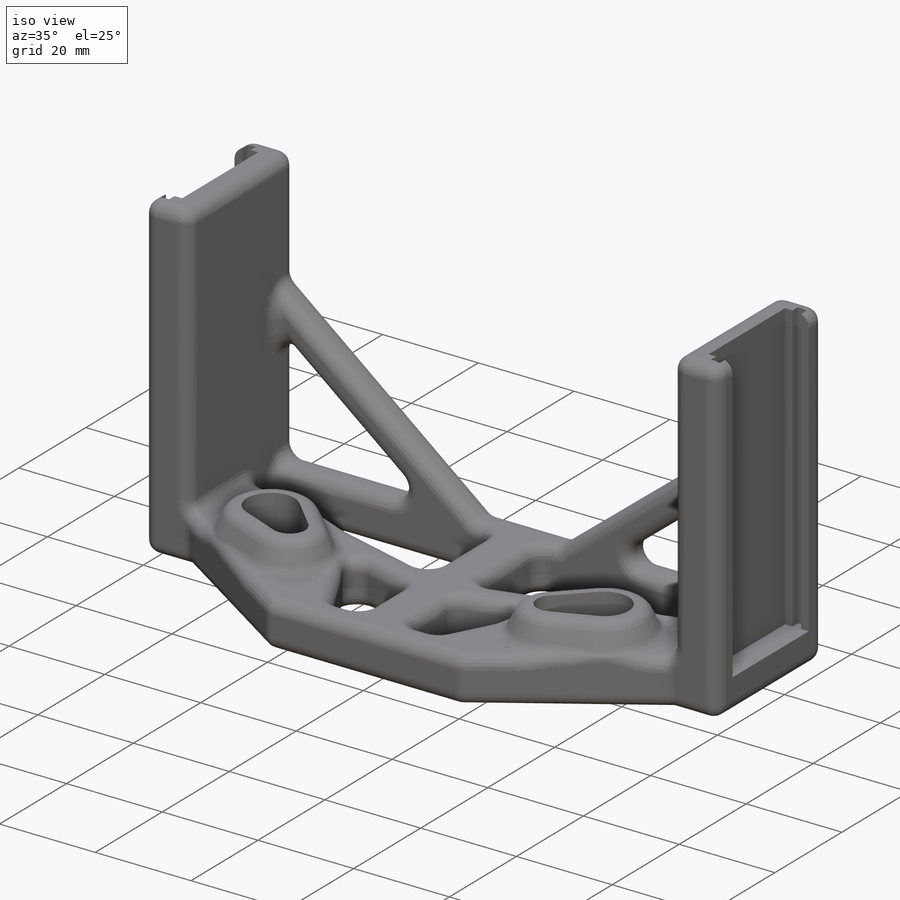
[diagram: iso view]
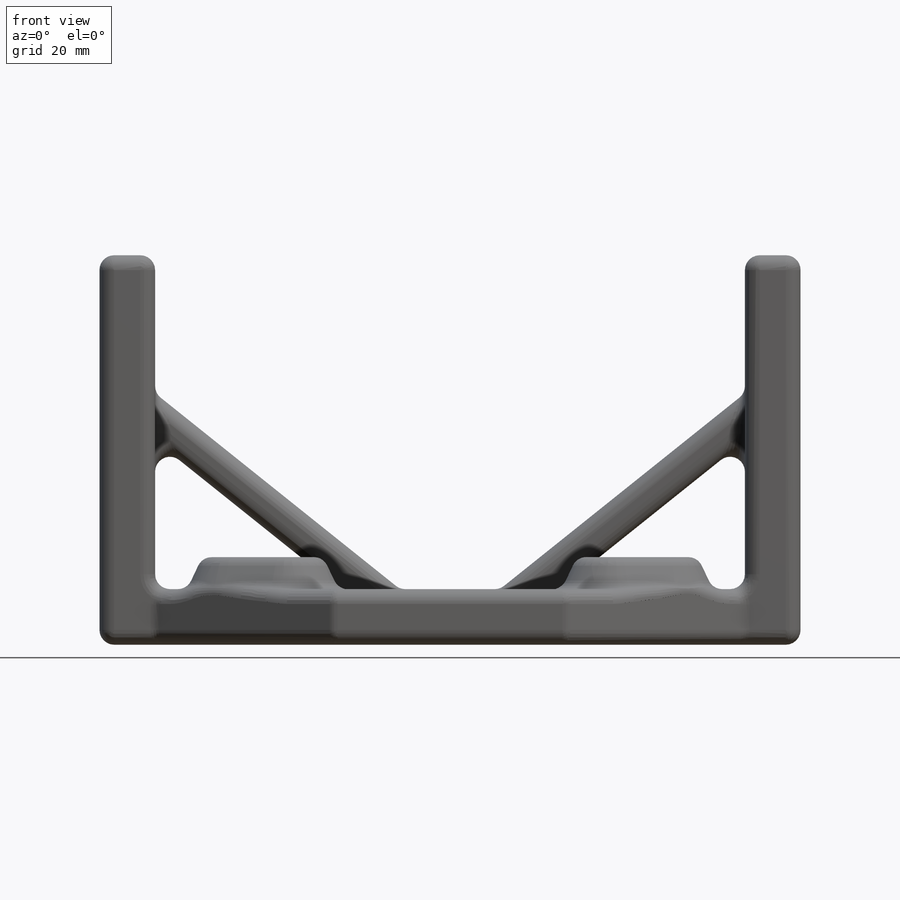
[diagram: front view]
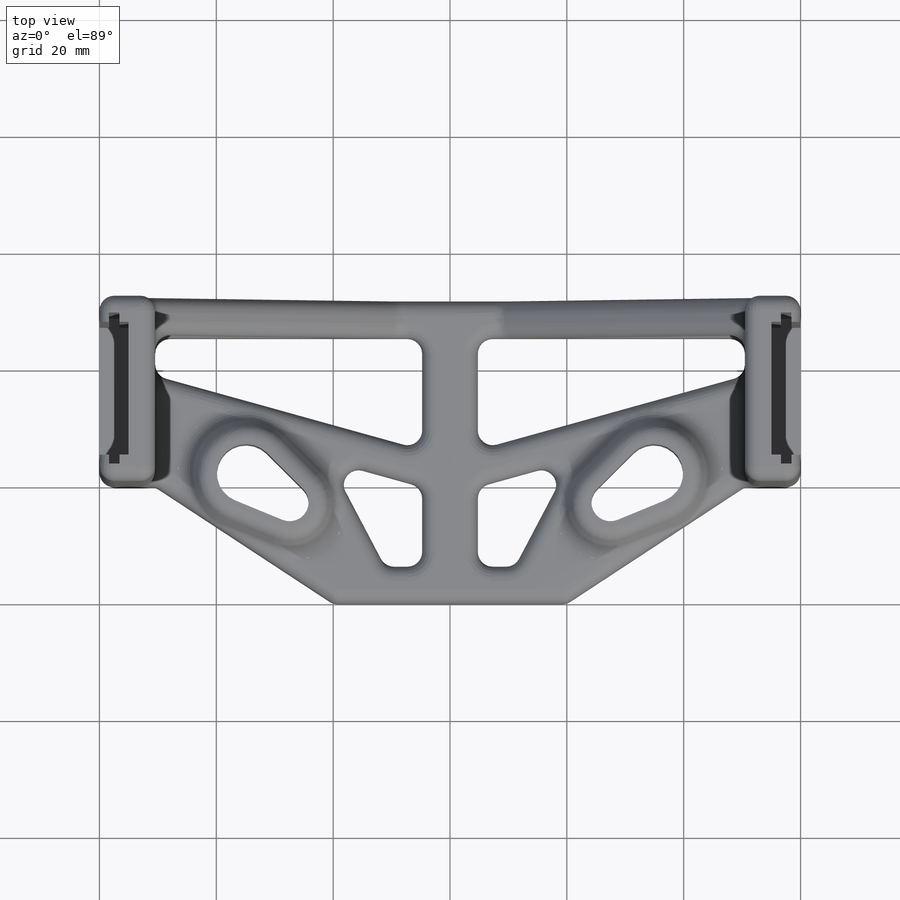
[diagram: top view]
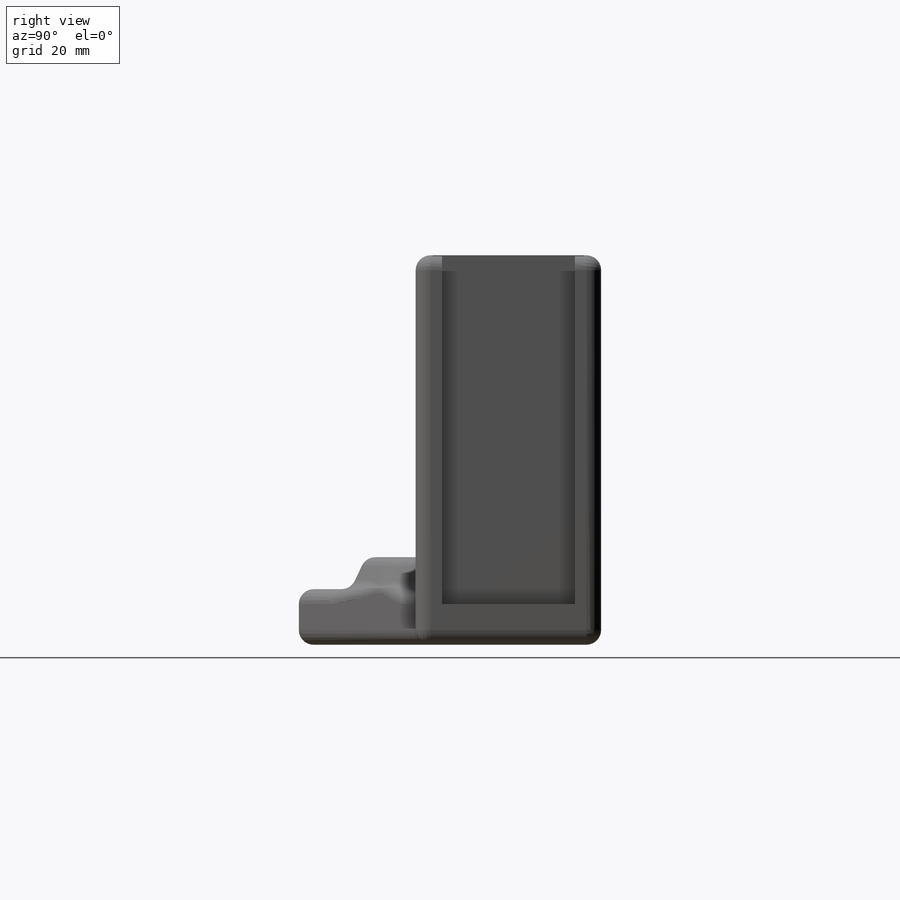
[diagram: right view]
SOLIDWORKS PART (.sldprt)
format: sldprt  version: not decoded by parser v0  size: 1,180,160 bytes
history: native  units: mm
features: sketch x7, fillet x7, extrude x4, cut_extrude x3, material x1, mirror x1, chamfer x1 (+12 scaffold rows collapsed)
feature tree (36):
  scaffold x12  (default folders/planes/origin — collapsed)
  material  "Material <not specified>"
  sketch  "Sketch8"  dims[c1.D1=20.0mm c1.D2=40.0mm c1.D3=20.0mm c1.D4=31.75mm c1.D5=13.0mm c1.D6=~13.790958mm c2.D5=10.16mm c2.D6=19.05mm c2.D7=9.525mm]
  extrude  "Boss-Extrude4"  Depth=9.525mm
  sketch  "Sketch9"  dims[c1.D1=6.5mm c1.D2=10.0mm c2.D1=6.5mm c2.D2=10.0mm c2.D3=79.7mm c2.D4=48.5mm c2.D5=~32.343983mm c3.D3=17.2mm c3.D4=48.4mm c3.D5=79.8mm c3.D6=14.0mm]
  cut_extrude  "Cut-Extrude1"  [1 undecoded]
  sketch  "Sketch10"  dims[D1=31.75mm D2=9.525mm]
  extrude  "Boss-Extrude5"  Depth=57.15mm
  sketch  "Sketch11"  dims[D1=25.908mm D2=1.5875mm D3=1.8mm D4=1.5875mm D5=1.5875mm]
  cut_extrude  "Cut-Extrude2"  Depth=59.69mm
  mirror  "Mirror1"
  sketch  "Sketch12"  dims[D1=19.05mm D2=6.35mm D3=6.35mm D4=4.7625mm D5=6.35mm D6=6.35mm D7=6.35mm D8=15.875mm D9=6.35mm]
  cut_extrude  "Cut-Extrude3"  [1 undecoded]
  sketch  "Sketch13"  dims[D1=6.35mm D2=25.4mm D3=31.75mm]
  extrude  "Boss-Extrude6"  Depth=6.35mm
  fillet  "Fillet1"  Radius=2.54mm
  sketch  "Sketch14"  dims[D1=2.54mm]
  extrude  "Boss-Extrude7"  Depth=15mm
  chamfer  "Chamfer1"  Distance=2.54mm
  fillet  "Fillet5"  Radius=2.54mm
  fillet  "Fillet11"  Radius=2.54mm
  fillet  "Fillet12"  Radius=2.54mm
  fillet  "Fillet13"  Radius=2.54mm
  fillet  "Fillet14"  Radius=2.54mm
  fillet  "Fillet17"  Radius=2.54mm
decode coverage: 20 of 23 modeling features carry decoded parameters
note: ~ marks probable driven/reference dimensions
note: 2 parameter values undecoded
note: suppression state not decoded; provenance and decode notes live in map.json
